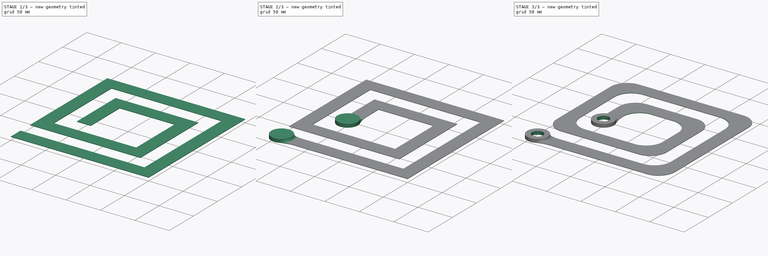
[diagram: build sequence overview — one tinted view per stage of 3, left to right]
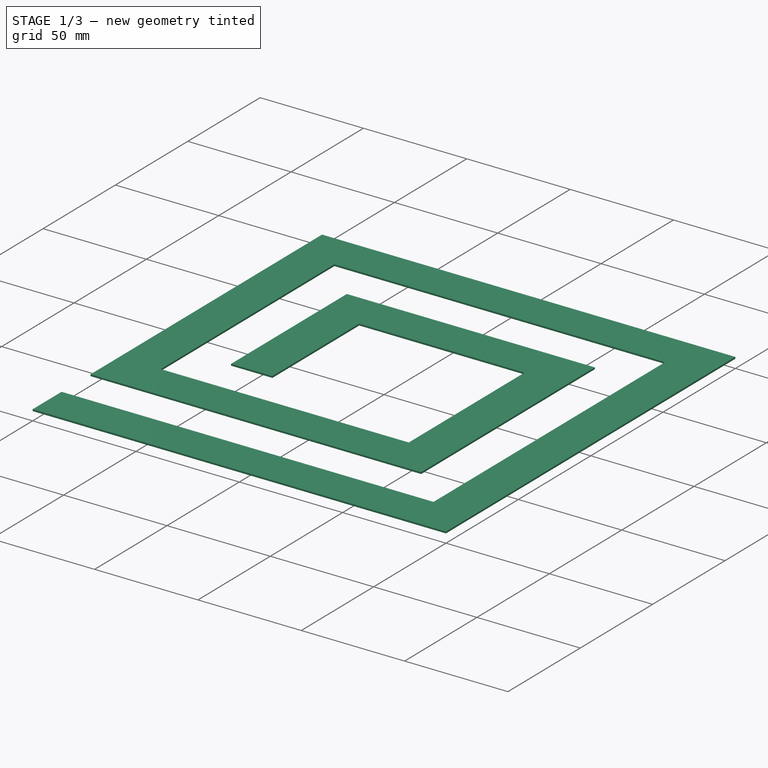
[diagram: stage 1 of 3 — iso view after this stage's code; geometry added in this stage tinted green]
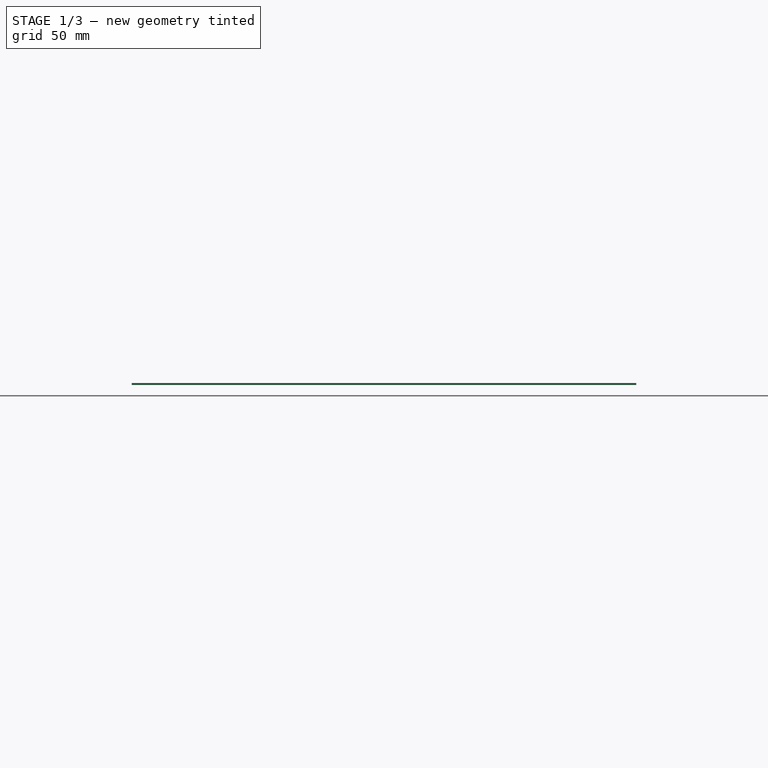
[diagram: stage 1 of 3 — front view after this stage's code; geometry added in this stage tinted green]
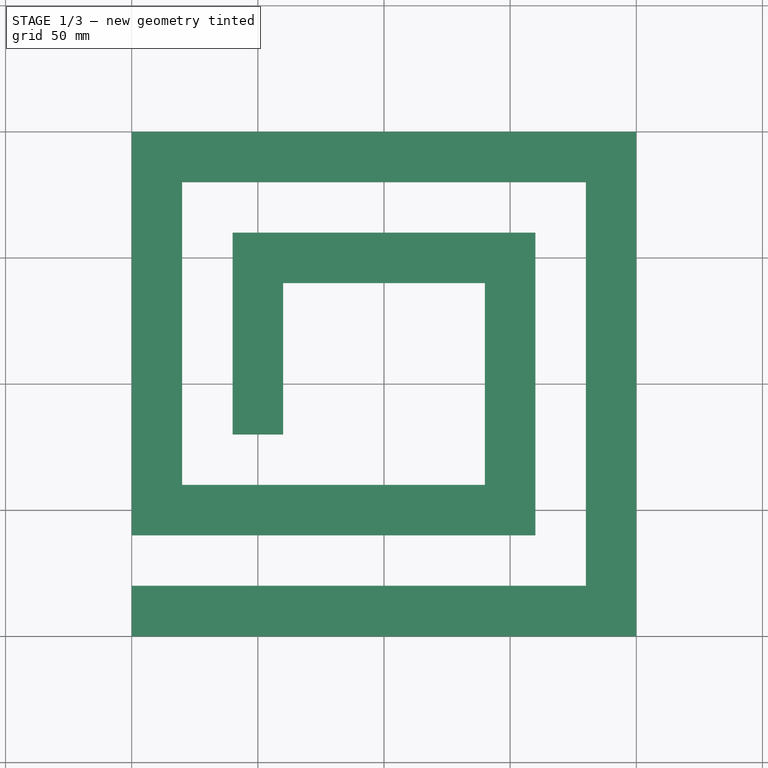
[diagram: stage 1 of 3 — top view after this stage's code; geometry added in this stage tinted green]
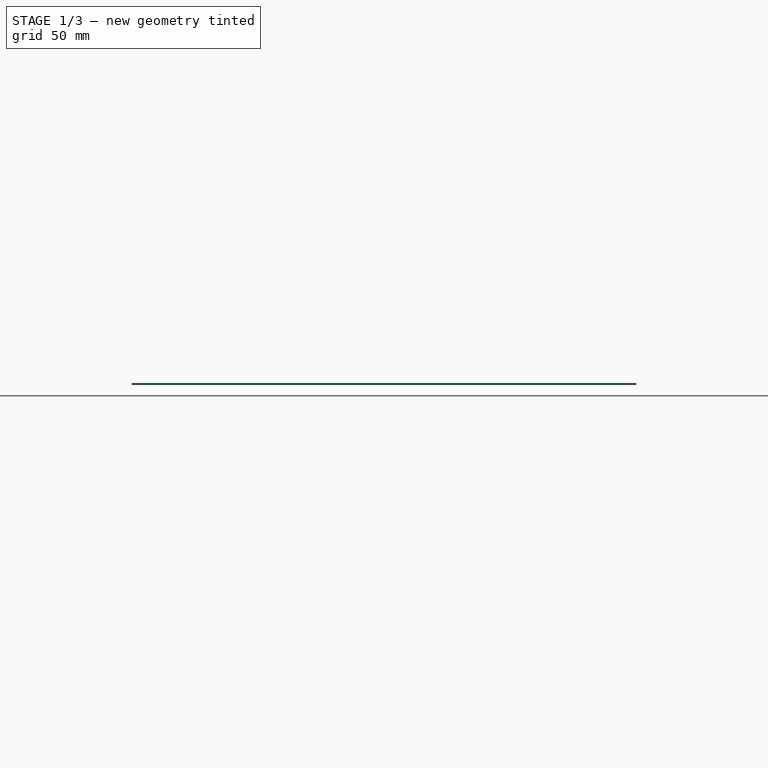
[diagram: stage 1 of 3 — right view after this stage's code; geometry added in this stage tinted green]
FCSTD DOCUMENT  (FreeCAD 0.14R2756 (Git))
Label: resistance_band
License: CC-BY 3.0
LicenseURL: http://creativecommons.org/licenses/by/3.0/
objects: Sketcher::SketchObject×4, PartDesign::Fillet×3, PartDesign::Pad×2, PartDesign::Pocket×2
note: 15 computed .brp shape members not serialized (recipe doc carries the construction recipe); baked Part::Feature solids carry a one-line shape summary decoded from their .brp

FEATURE [Sketcher::SketchObject] Sketch
  sketch-geometry (4):
    g0: LineSegment StartX=0 StartY=0 StartZ=0 EndX=200 EndY=0 EndZ=0
    g1: LineSegment StartX=200 StartY=0 StartZ=0 EndX=200 EndY=200 EndZ=0
    g2: LineSegment StartX=200 StartY=200 StartZ=0 EndX=0 EndY=200 EndZ=0
    g3: LineSegment StartX=0 StartY=200 StartZ=0 EndX=0 EndY=0 EndZ=0
  constraints (10):
    c: Coincident(g0,g1)
    c: Coincident(g1,g2)
    c: Coincident(g2,g3)
    c: Coincident(g3,g0)
    c: Horizontal(g0)
    c: Horizontal(g2)
    c: Vertical(g1)
    c: Vertical(g3)
    c: Equal(g2,g3)
    c: DistanceX(g2) = -200
FEATURE [PartDesign::Pad] Pad
  Length = 0.8
  Length2 = 100
  Sketch = -> Sketch
  Type = 0
FEATURE [Sketcher::SketchObject] Sketch001
  Placement = pos=(0,0,0) rot=(1,0,0;3.14159rad)
  Support = -> Pad [Face5]
  sketch-geometry (12):
    g0: LineSegment StartX=0 StartY=-20 StartZ=0 EndX=180 EndY=-20 EndZ=0
    g1: LineSegment StartX=180 StartY=-20 StartZ=0 EndX=180 EndY=-180 EndZ=0
    g2: LineSegment StartX=180 StartY=-180 StartZ=0 EndX=20 EndY=-180 EndZ=0
    g3: LineSegment StartX=20 StartY=-180 StartZ=0 EndX=20 EndY=-60 EndZ=0
    g4: LineSegment StartX=20 StartY=-60 StartZ=0 EndX=142.379 EndY=-60 EndZ=0
    g5: LineSegment StartX=142.379 StartY=-60 StartZ=0 EndX=142.379 EndY=-80 EndZ=0
    g6: LineSegment StartX=142.379 StartY=-80 StartZ=0 EndX=42.3788 EndY=-80 EndZ=0
    g7: LineSegment StartX=42.3788 StartY=-80 StartZ=0 EndX=42.3788 EndY=-160 EndZ=0
    g8: LineSegment StartX=42.3788 StartY=-160 StartZ=0 EndX=160 EndY=-160 EndZ=0
    g9: LineSegment StartX=160 StartY=-160 StartZ=0 EndX=160 EndY=-40 EndZ=0
    g10: LineSegment StartX=160 StartY=-40 StartZ=0 EndX=0 EndY=-40 EndZ=0
    g11: LineSegment StartX=0 StartY=-40 StartZ=0 EndX=0 EndY=-20 EndZ=0
  constraints (26):
    c: PointOnObject(g0,g-2)
    c: Horizontal(g0)
    c: Coincident(g0,g1)
    c: Vertical(g1)
    c: Coincident(g1,g2)
    c: Horizontal(g2)
    c: Coincident(g2,g3)
    c: Vertical(g3)
    c: Coincident(g3,g4)
    c: Horizontal(g4)
    c: Coincident(g4,g5)
    c: Vertical(g5)
    c: Horizontal(g6)
    c: Coincident(g6,g7)
    c: Vertical(g7)
    c: Coincident(g7,g8)
    c: Horizontal(g8)
    c: Coincident(g8,g9)
    c: Vertical(g9)
    c: Coincident(g9,g10)
    c: PointOnObject(g10,g-2)
    c: Horizontal(g10)
    c: Coincident(g10,g11)
    c: Coincident(g11,g0)
    c: Vertical(g11)
    c: Coincident(g5,g6)
FEATURE [PartDesign::Pocket] Pocket
  Length = 5
  Sketch = -> Sketch001
  Type = 0
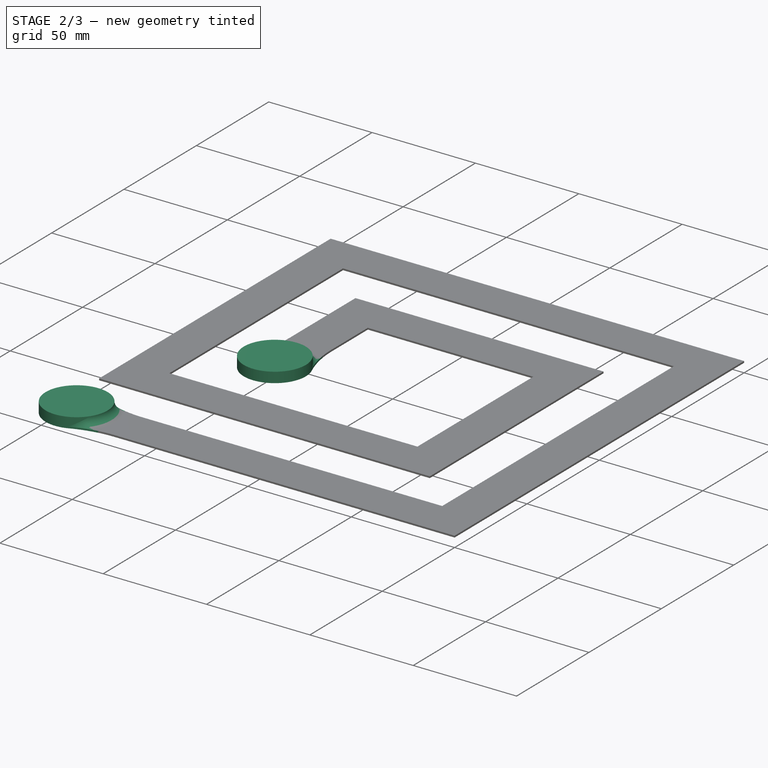
[diagram: stage 2 of 3 — iso view after this stage's code; geometry added in this stage tinted green]
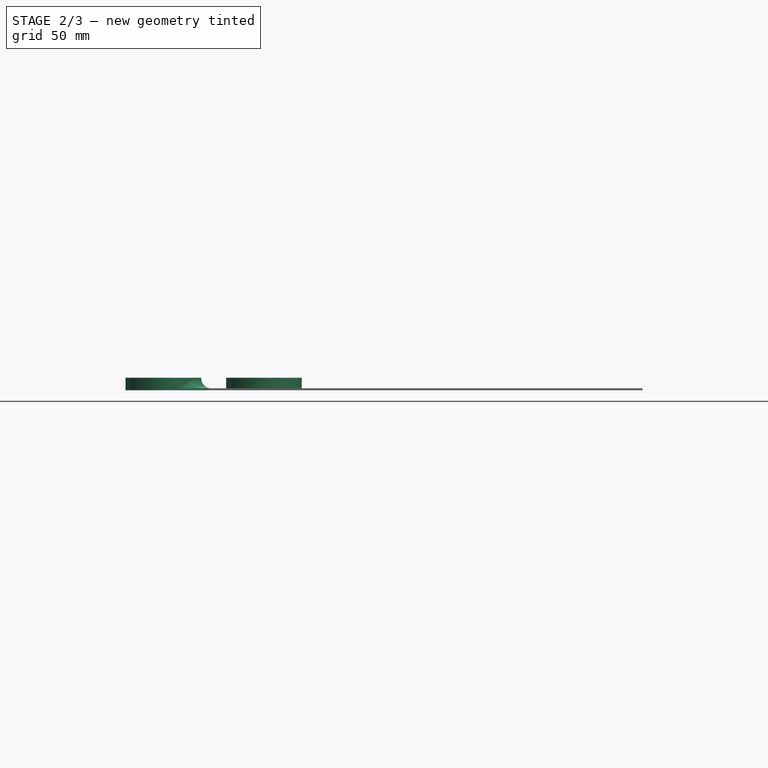
[diagram: stage 2 of 3 — front view after this stage's code; geometry added in this stage tinted green]
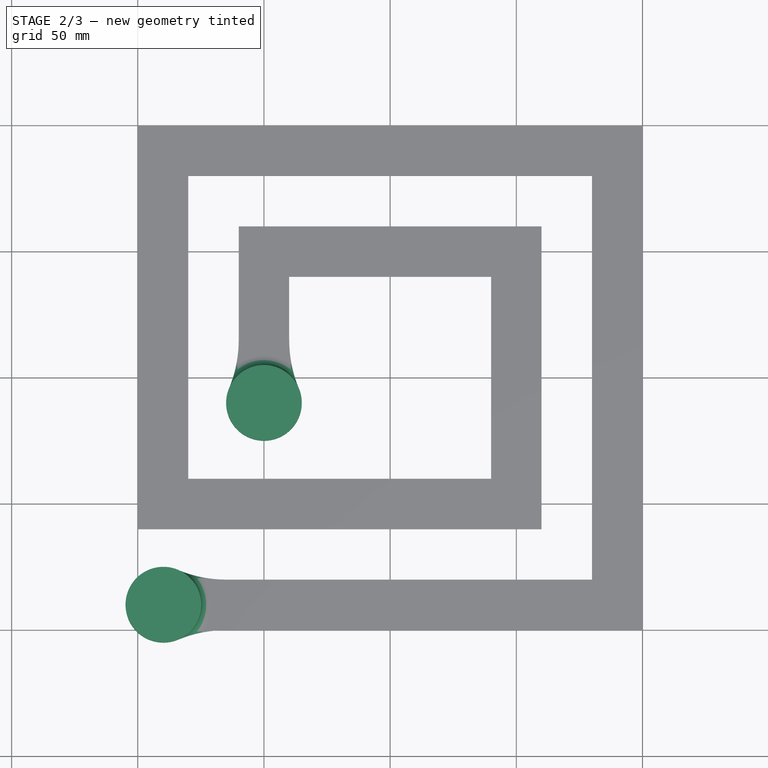
[diagram: stage 2 of 3 — top view after this stage's code; geometry added in this stage tinted green]
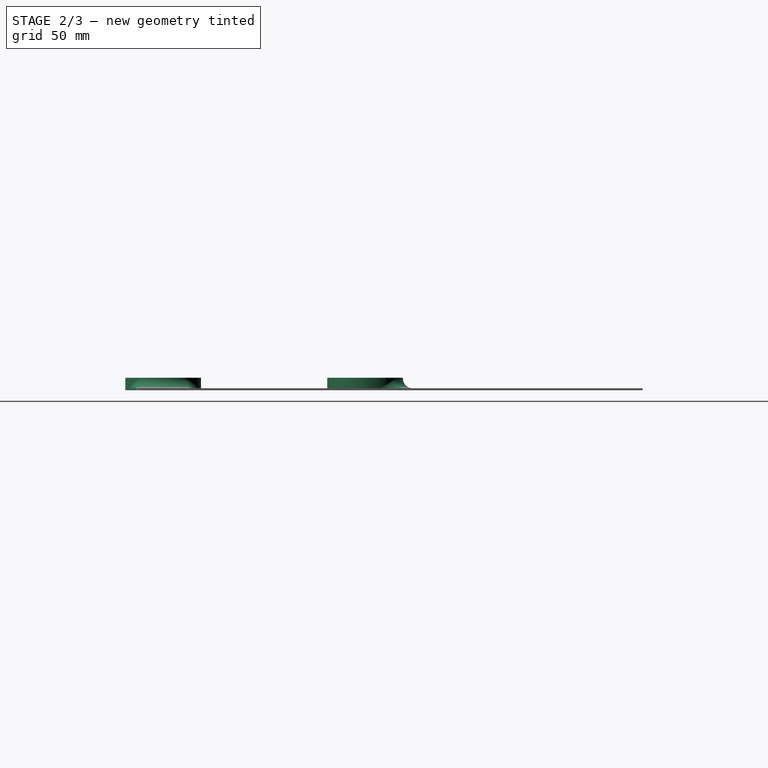
[diagram: stage 2 of 3 — right view after this stage's code; geometry added in this stage tinted green]
FEATURE [Sketcher::SketchObject] Sketch002
  Placement = pos=(0,0,0) rot=(1,0,0;3.14159rad)
  Support = -> Pocket [Face4]
  sketch-geometry (4):
    g0: LineSegment [constr] StartX=0 StartY=-20.0081 StartZ=0 EndX=10.1442 EndY=-10.0041 EndZ=0
    g1: LineSegment [constr] StartX=20.2885 StartY=0 StartZ=0 EndX=10.1442 EndY=-10.0041 EndZ=0
    g2: Circle CenterX=10.1442 CenterY=-10.0041 CenterZ=0 NormalX=0 NormalY=0 NormalZ=1 Radius=15
    g3: Circle CenterX=50 CenterY=-90 CenterZ=0 NormalX=0 NormalY=0 NormalZ=1 Radius=15
  constraints (10):
    c: PointOnObject(g0,g-2)
    c: PointOnObject(g1,g-1)
    c: Coincident(g1,g0)
    c: PointOnObject(g0,g1)
    c: Equal(g0,g1)
    c: Coincident(g2,g0)
    c: Radius(g2) = 15
    c: Equal(g3,g2)
    c: DistanceX(g3) = 50
    c: DistanceY(g3) = -90
FEATURE [PartDesign::Pad] Pad001
  Length = 5
  Length2 = 100
  Reversed = true
  Sketch = -> Sketch002
  Type = 0
FEATURE [PartDesign::Fillet] Fillet
  Base = -> Pad001 [Edge44,Edge51,Edge56,Edge5]
  Radius = 50
FEATURE [PartDesign::Fillet] Fillet001
  Base = -> Fillet [Edge53,Edge38]
  Radius = 4
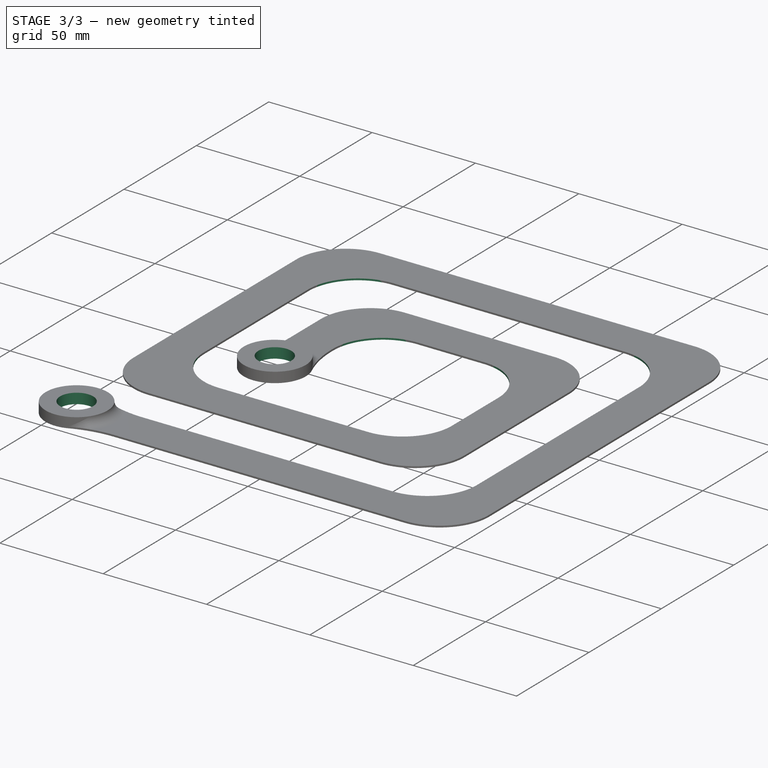
[diagram: stage 3 of 3 — iso view after this stage's code; geometry added in this stage tinted green]
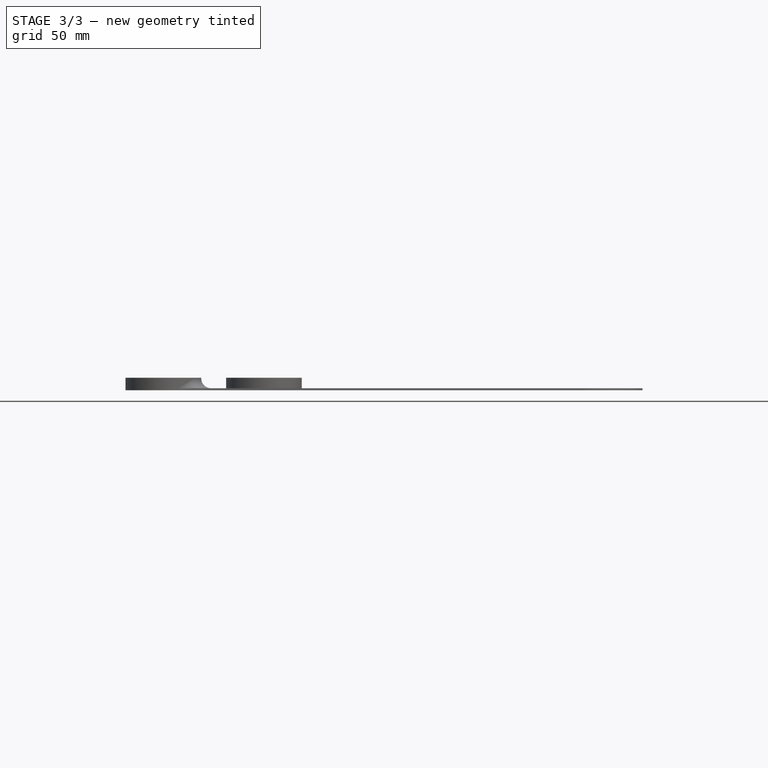
[diagram: stage 3 of 3 — front view after this stage's code; geometry added in this stage tinted green]
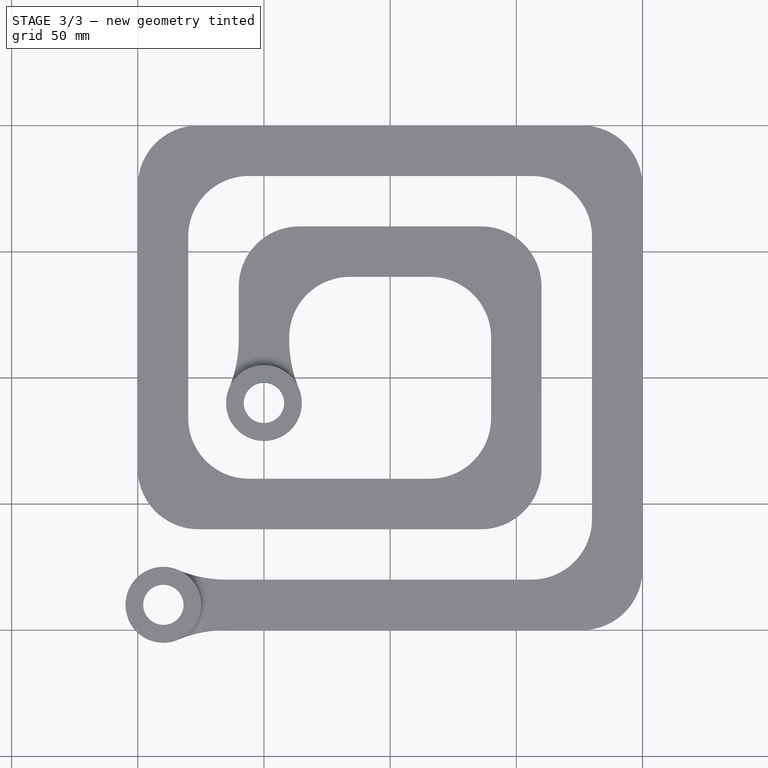
[diagram: stage 3 of 3 — top view after this stage's code; geometry added in this stage tinted green]
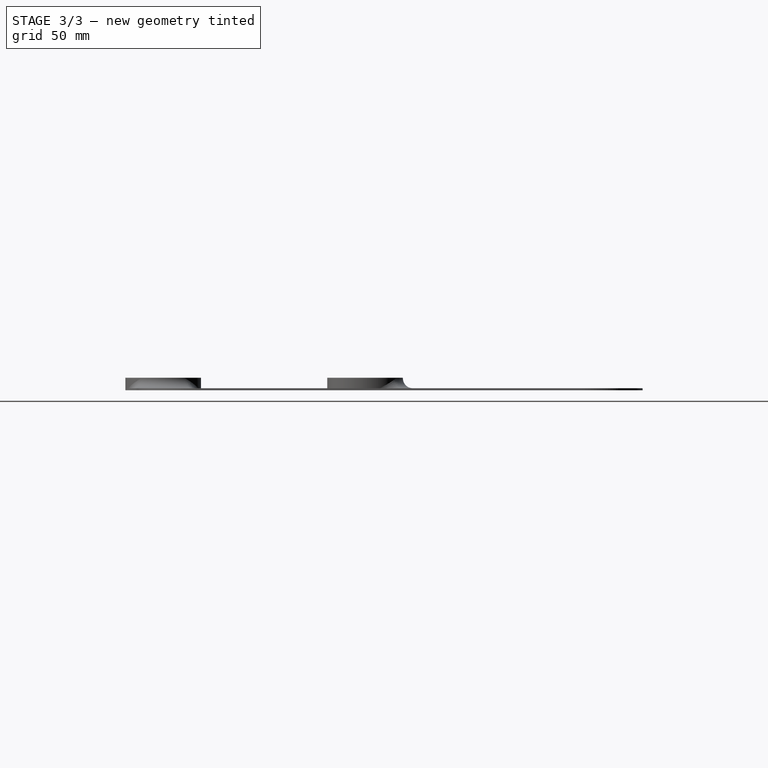
[diagram: stage 3 of 3 — right view after this stage's code; geometry added in this stage tinted green]
FEATURE [Sketcher::SketchObject] Sketch003
  ExternalGeometry = -> [Fillet001]
  Placement = pos=(0,0,5) rot=(0,0,1;0rad)
  Support = -> Fillet001 [Face37]
  sketch-geometry (2):
    g0: Circle CenterX=50 CenterY=90 CenterZ=0 NormalX=0 NormalY=0 NormalZ=1 Radius=8
    g1: Circle CenterX=10.1442 CenterY=10.0041 CenterZ=0 NormalX=0 NormalY=0 NormalZ=1 Radius=8
  constraints (4):
    c: Coincident(g0,g-3)
    c: Coincident(g1,g-4)
    c: Equal(g1,g0)
    c: Radius(g0) = 8
FEATURE [PartDesign::Pocket] Pocket001
  Length = 5
  Sketch = -> Sketch003
  Type = 1
FEATURE [PartDesign::Fillet] Fillet002
  Base = -> Pocket001 [Edge95,Edge87,Edge93,Edge85,Edge91,Edge89,Edge43,Edge79,Edge90,Edge92,Edge84,Edge86,Edge94,Edge88]
  Radius = 24
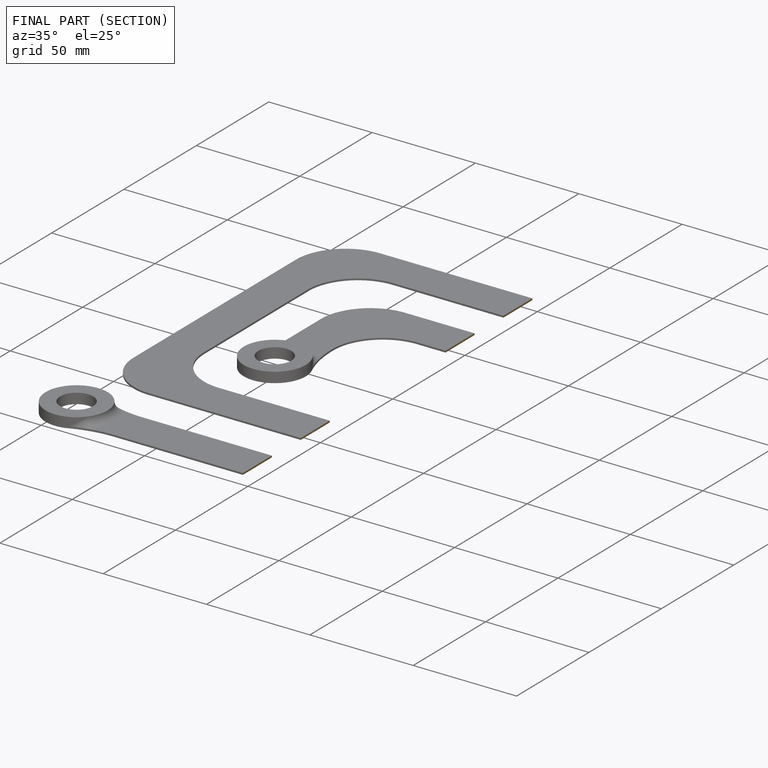
[diagram: finished part — half-section view (interior)]
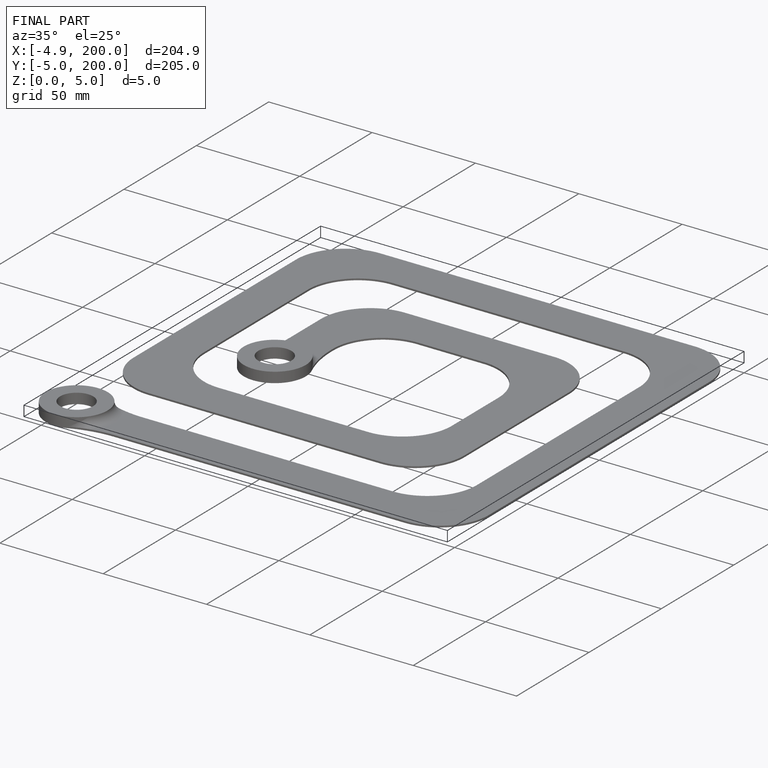
[diagram: finished part — iso view with bounding-box wireframe]
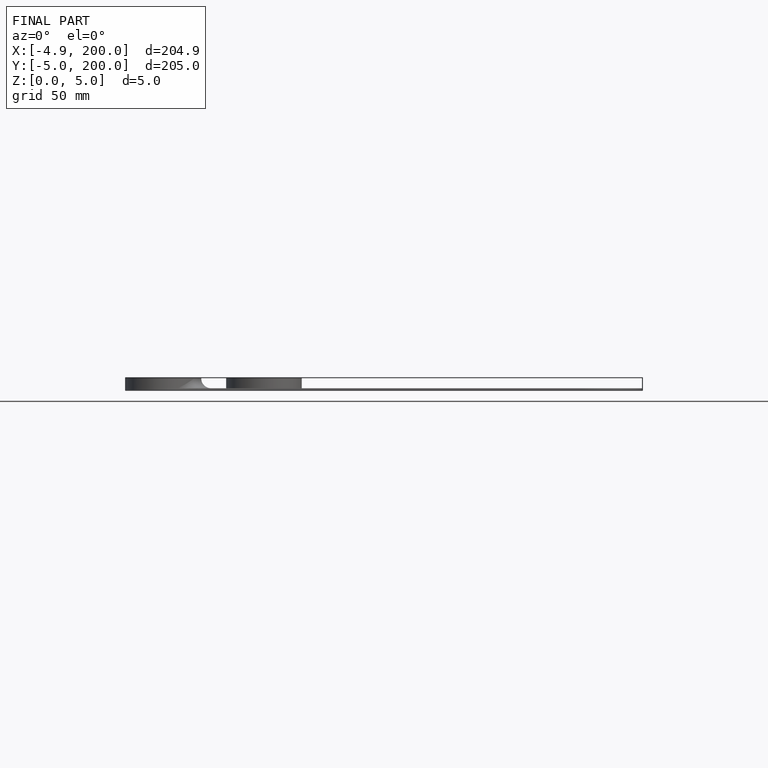
[diagram: finished part — front view with bounding-box wireframe]
